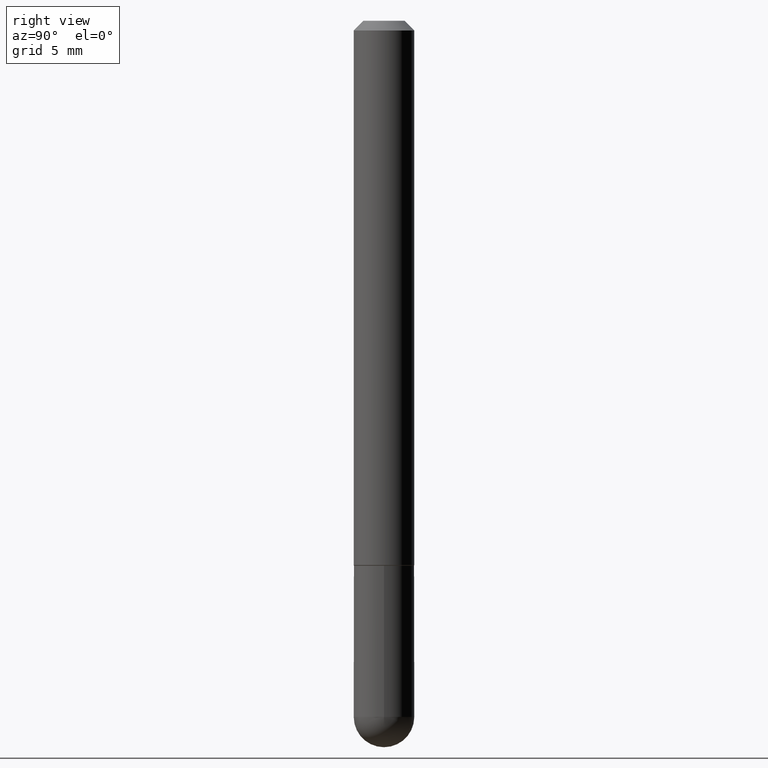
[diagram: clean part render]
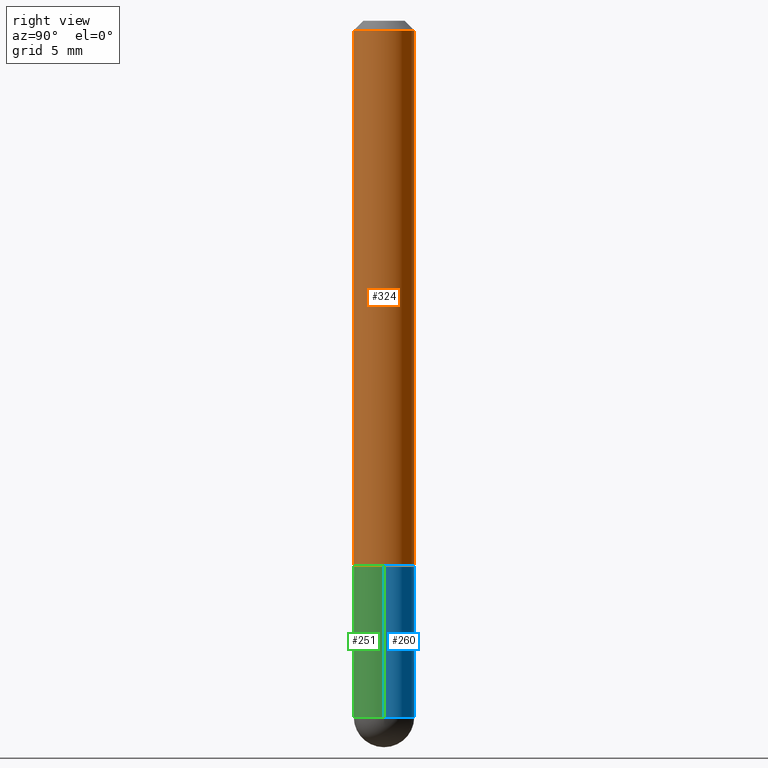
[diagram: same view with three faces highlighted in distinct colors, each labeled with its STEP entity id]
A machine part, right view with three faces highlighted in distinct colors.
Their STEP definitions:

[orange] entity #324 — the highlighted cylindrical surface (edge-blend (fillet) strip) has radius 1.5875 mm, axis along (-0, 0, 1).
#22 = CARTESIAN_POINT ( 'NONE',  ( 0.000000000000000000, 0.000000000000000000, 0.000000000000000000 ) ) ;
#33 = CARTESIAN_POINT ( 'NONE',  ( 4.440892098500628134E-16, 0.06250000000000002776, -2.199981325474416425E-16 ) ) ;
#44 = VECTOR ( 'NONE', #314, 39.37007874015748143 ) ;
#48 = EDGE_LOOP ( 'NONE', ( #109, #303, #209, #399 ) ) ;
#62 = AXIS2_PLACEMENT_3D ( 'NONE', #63, #372, #129 ) ;
#63 = CARTESIAN_POINT ( 'NONE',  ( 4.851150392199968571E-31, -7.039940241518151938E-17, -0.02000000000000006981 ) ) ;
#76 = AXIS2_PLACEMENT_3D ( 'NONE', #395, #145, #147 ) ;
#90 = EDGE_CURVE ( 'NONE', #244, #173, #121, .T. ) ;
#109 = ORIENTED_EDGE ( 'NONE', *, *, #336, .T. ) ;
#121 = LINE ( 'NONE', #33, #44 ) ;
#129 = DIRECTION ( 'NONE',  ( -6.982962677686265922E-15, -1.000000000000000000, 3.551402391763545142E-15 ) ) ;
#140 = CARTESIAN_POINT ( 'NONE',  ( -4.287811248607198352E-16, -0.06250000000000001388, -0.01999999999999984776 ) ) ;
#145 = DIRECTION ( 'NONE',  ( -2.425575196099976193E-29, 3.519970120759064308E-15, 1.000000000000000000 ) ) ;
#147 = DIRECTION ( 'NONE',  ( -6.982962677686265133E-15, -1.000000000000000000, 4.370956789862812472E-15 ) ) ;
#150 = VECTOR ( 'NONE', #169, 39.37007874015748143 ) ;
#151 = EDGE_CURVE ( 'NONE', #338, #173, #172, .T. ) ;
#169 = DIRECTION ( 'NONE',  ( -2.425575196099975913E-29, 3.519970120759064703E-15, 1.000000000000000000 ) ) ;
#171 = FACE_OUTER_BOUND ( 'NONE', #48, .T. ) ;
#172 = CIRCLE ( 'NONE', #62, 0.06249999999999995143 ) ;
#173 = VERTEX_POINT ( 'NONE', #194 ) ;
#174 = CIRCLE ( 'NONE', #76, 0.06250000000000012490 ) ;
#194 = CARTESIAN_POINT ( 'NONE',  ( 4.364351673553917187E-16, 0.06249999999999988204, -0.02000000000000029185 ) ) ;
#197 = CARTESIAN_POINT ( 'NONE',  ( 4.440892098500770129E-16, 0.06249999999999616279, -1.124000000000000332 ) ) ;
#209 = ORIENTED_EDGE ( 'NONE', *, *, #151, .F. ) ;
#227 = CARTESIAN_POINT ( 'NONE',  ( -4.364351673553652426E-16, -0.06250000000000406619, -1.123999999999999888 ) ) ;
#239 = LINE ( 'NONE', #337, #150 ) ;
#240 = VERTEX_POINT ( 'NONE', #227 ) ;
#244 = VERTEX_POINT ( 'NONE', #197 ) ;
#258 = AXIS2_PLACEMENT_3D ( 'NONE', #22, #363, #367 ) ;
#270 = CYLINDRICAL_SURFACE ( 'NONE', #258, 0.06250000000000002776 ) ;
#303 = ORIENTED_EDGE ( 'NONE', *, *, #90, .T. ) ;
#314 = DIRECTION ( 'NONE',  ( -2.425575196099975913E-29, 3.519970120759064703E-15, 1.000000000000000000 ) ) ;
#324 = ADVANCED_FACE ( 'NONE', ( #171 ), #270, .T. ) ;
#336 = EDGE_CURVE ( 'NONE', #240, #244, #174, .T. ) ;
#337 = CARTESIAN_POINT ( 'NONE',  ( -4.364351673553918666E-16, -0.06250000000000002776, 2.199981325474416425E-16 ) ) ;
#338 = VERTEX_POINT ( 'NONE', #140 ) ;
#363 = DIRECTION ( 'NONE',  ( -2.425575196099976193E-29, 3.519970120759064308E-15, 1.000000000000000000 ) ) ;
#367 = DIRECTION ( 'NONE',  ( -6.982962677686266711E-15, -1.000000000000000000, 3.519970120759064703E-15 ) ) ;
#372 = DIRECTION ( 'NONE',  ( -2.425575196099976193E-29, 3.519970120759064308E-15, 1.000000000000000000 ) ) ;
#395 = CARTESIAN_POINT ( 'NONE',  ( 2.726346520416373484E-29, -3.956446415733188311E-15, -1.124000000000000110 ) ) ;
#399 = ORIENTED_EDGE ( 'NONE', *, *, #412, .F. ) ;
#412 = EDGE_CURVE ( 'NONE', #240, #338, #239, .T. ) ;

[blue] entity #260 — the highlighted cylindrical surface (edge-blend (fillet) strip) has radius 1.5875 mm, axis along (-0, 0, 1).
#5 = DIRECTION ( 'NONE',  ( 1.000000000000000000, -6.982962677686267499E-15, 4.876176775795936353E-29 ) ) ;
#12 = FACE_OUTER_BOUND ( 'NONE', #335, .T. ) ;
#20 = ORIENTED_EDGE ( 'NONE', *, *, #406, .T. ) ;
#28 = ORIENTED_EDGE ( 'NONE', *, *, #65, .F. ) ;
#31 = AXIS2_PLACEMENT_3D ( 'NONE', #47, #328, #49 ) ;
#34 = CARTESIAN_POINT ( 'NONE',  ( 0.000000000000000000, 0.000000000000000000, 0.000000000000000000 ) ) ;
#37 = CARTESIAN_POINT ( 'NONE',  ( 4.364351673554256397E-16, 0.06249999999999480971, -1.437500000000000444 ) ) ;
#41 = EDGE_CURVE ( 'NONE', #215, #213, #54, .T. ) ;
#47 = CARTESIAN_POINT ( 'NONE',  ( 3.515361408891134418E-29, -5.019004424587023131E-15, -1.437500000000000222 ) ) ;
#49 = DIRECTION ( 'NONE',  ( 1.000000000000000000, -6.982962677686268288E-15, 0.000000000000000000 ) ) ;
#54 = CIRCLE ( 'NONE', #250, 0.06249999999999995143 ) ;
#65 = EDGE_CURVE ( 'NONE', #313, #170, #142, .T. ) ;
#69 = VECTOR ( 'NONE', #162, 39.37007874015748143 ) ;
#99 = CYLINDRICAL_SURFACE ( 'NONE', #208, 0.06249999999999997918 ) ;
#119 = VERTEX_POINT ( 'NONE', #374 ) ;
#138 = DIRECTION ( 'NONE',  ( -2.445468806185136597E-29, 3.491481338843145583E-15, 1.000000000000000000 ) ) ;
#142 = CIRCLE ( 'NONE', #400, 0.06250000000000001388 ) ;
#154 = CARTESIAN_POINT ( 'NONE',  ( 2.751152406958278111E-29, -3.927916506198538435E-15, -1.124999999999999778 ) ) ;
#161 = VECTOR ( 'NONE', #232, 39.37007874015748143 ) ;
#162 = DIRECTION ( 'NONE',  ( -2.445468806185136877E-29, 3.491481338843145188E-15, 1.000000000000000000 ) ) ;
#170 = VERTEX_POINT ( 'NONE', #231 ) ;
#183 = DIRECTION ( 'NONE',  ( -2.445468806185136597E-29, 3.491481338843145583E-15, 1.000000000000000000 ) ) ;
#198 = CARTESIAN_POINT ( 'NONE',  ( 0.06250000000000001388, -4.364351673553930105E-15, -1.124999999999999778 ) ) ;
#208 = AXIS2_PLACEMENT_3D ( 'NONE', #34, #138, #5 ) ;
#213 = VERTEX_POINT ( 'NONE', #37 ) ;
#215 = VERTEX_POINT ( 'NONE', #292 ) ;
#219 = DIRECTION ( 'NONE',  ( 1.000000000000000000, -6.982962677686268288E-15, 0.000000000000000000 ) ) ;
#231 = CARTESIAN_POINT ( 'NONE',  ( -0.06250000000000001388, -4.029371255542718167E-15, -1.124999999999999778 ) ) ;
#232 = DIRECTION ( 'NONE',  ( -2.445468806185136877E-29, 3.491481338843145188E-15, 1.000000000000000000 ) ) ;
#236 = EDGE_CURVE ( 'NONE', #215, #313, #325, .T. ) ;
#245 = EDGE_CURVE ( 'NONE', #119, #170, #357, .T. ) ;
#250 = AXIS2_PLACEMENT_3D ( 'NONE', #315, #183, #219 ) ;
#260 = ADVANCED_FACE ( 'NONE', ( #12 ), #99, .T. ) ;
#271 = ORIENTED_EDGE ( 'NONE', *, *, #245, .T. ) ;
#280 = DIRECTION ( 'NONE',  ( 1.000000000000000000, -6.982962677686269077E-15, 0.000000000000000000 ) ) ;
#282 = DIRECTION ( 'NONE',  ( -2.445468806185136597E-29, 3.491481338843145583E-15, 1.000000000000000000 ) ) ;
#292 = CARTESIAN_POINT ( 'NONE',  ( 0.06249999999999995143, -4.909895632748172453E-15, -1.437500000000000222 ) ) ;
#313 = VERTEX_POINT ( 'NONE', #198 ) ;
#315 = CARTESIAN_POINT ( 'NONE',  ( 3.515361408891134418E-29, -5.019004424587023131E-15, -1.437500000000000222 ) ) ;
#321 = CARTESIAN_POINT ( 'NONE',  ( 0.06249999999999997918, -4.364351673553915708E-16, 3.047610484872459170E-30 ) ) ;
#325 = LINE ( 'NONE', #321, #161 ) ;
#328 = DIRECTION ( 'NONE',  ( -2.445468806185136597E-29, 3.491481338843145583E-15, 1.000000000000000000 ) ) ;
#333 = CIRCLE ( 'NONE', #31, 0.06249999999999995143 ) ;
#335 = EDGE_LOOP ( 'NONE', ( #20, #271, #28, #390, #370 ) ) ;
#356 = CARTESIAN_POINT ( 'NONE',  ( -0.06249999999999997918, 4.440892098500624683E-16, -3.074334431409315413E-30 ) ) ;
#357 = LINE ( 'NONE', #356, #69 ) ;
#370 = ORIENTED_EDGE ( 'NONE', *, *, #41, .T. ) ;
#374 = CARTESIAN_POINT ( 'NONE',  ( -0.06249999999999995143, -4.029371255542718167E-15, -1.437500000000000222 ) ) ;
#390 = ORIENTED_EDGE ( 'NONE', *, *, #236, .F. ) ;
#400 = AXIS2_PLACEMENT_3D ( 'NONE', #154, #282, #280 ) ;
#406 = EDGE_CURVE ( 'NONE', #213, #119, #333, .T. ) ;

[green] entity #251 — the highlighted cylindrical surface (edge-blend (fillet) strip) has radius 1.5875 mm, axis along (-0, 0, 1).
#39 = FACE_OUTER_BOUND ( 'NONE', #403, .T. ) ;
#66 = CARTESIAN_POINT ( 'NONE',  ( 0.000000000000000000, 0.000000000000000000, 0.000000000000000000 ) ) ;
#69 = VECTOR ( 'NONE', #162, 39.37007874015748143 ) ;
#102 = EDGE_CURVE ( 'NONE', #139, #215, #135, .T. ) ;
#119 = VERTEX_POINT ( 'NONE', #374 ) ;
#134 = DIRECTION ( 'NONE',  ( -2.445468806185136597E-29, 3.491481338843145583E-15, 1.000000000000000000 ) ) ;
#135 = CIRCLE ( 'NONE', #188, 0.06249999999999995143 ) ;
#139 = VERTEX_POINT ( 'NONE', #345 ) ;
#155 = DIRECTION ( 'NONE',  ( -2.445468806185136597E-29, 3.491481338843145583E-15, 1.000000000000000000 ) ) ;
#161 = VECTOR ( 'NONE', #232, 39.37007874015748143 ) ;
#162 = DIRECTION ( 'NONE',  ( -2.445468806185136877E-29, 3.491481338843145188E-15, 1.000000000000000000 ) ) ;
#166 = DIRECTION ( 'NONE',  ( -2.445468806185136597E-29, 3.491481338843145583E-15, 1.000000000000000000 ) ) ;
#170 = VERTEX_POINT ( 'NONE', #231 ) ;
#188 = AXIS2_PLACEMENT_3D ( 'NONE', #380, #155, #285 ) ;
#198 = CARTESIAN_POINT ( 'NONE',  ( 0.06250000000000001388, -4.364351673553930105E-15, -1.124999999999999778 ) ) ;
#200 = CIRCLE ( 'NONE', #309, 0.06249999999999995143 ) ;
#206 = ORIENTED_EDGE ( 'NONE', *, *, #245, .F. ) ;
#215 = VERTEX_POINT ( 'NONE', #292 ) ;
#226 = DIRECTION ( 'NONE',  ( 1.000000000000000000, -6.982962677686268288E-15, 0.000000000000000000 ) ) ;
#231 = CARTESIAN_POINT ( 'NONE',  ( -0.06250000000000001388, -4.029371255542718167E-15, -1.124999999999999778 ) ) ;
#232 = DIRECTION ( 'NONE',  ( -2.445468806185136877E-29, 3.491481338843145188E-15, 1.000000000000000000 ) ) ;
#235 = ORIENTED_EDGE ( 'NONE', *, *, #102, .T. ) ;
#236 = EDGE_CURVE ( 'NONE', #215, #313, #325, .T. ) ;
#245 = EDGE_CURVE ( 'NONE', #119, #170, #357, .T. ) ;
#251 = ADVANCED_FACE ( 'NONE', ( #39 ), #320, .T. ) ;
#253 = ORIENTED_EDGE ( 'NONE', *, *, #268, .F. ) ;
#259 = CARTESIAN_POINT ( 'NONE',  ( 3.515361408891134418E-29, -5.019004424587023131E-15, -1.437500000000000222 ) ) ;
#261 = DIRECTION ( 'NONE',  ( 1.000000000000000000, -6.982962677686267499E-15, 4.876176775795936353E-29 ) ) ;
#263 = AXIS2_PLACEMENT_3D ( 'NONE', #66, #166, #261 ) ;
#266 = DIRECTION ( 'NONE',  ( -2.445468806185136597E-29, 3.491481338843145583E-15, 1.000000000000000000 ) ) ;
#268 = EDGE_CURVE ( 'NONE', #170, #313, #300, .T. ) ;
#274 = ORIENTED_EDGE ( 'NONE', *, *, #236, .T. ) ;
#285 = DIRECTION ( 'NONE',  ( 1.000000000000000000, -6.982962677686268288E-15, 0.000000000000000000 ) ) ;
#291 = EDGE_CURVE ( 'NONE', #119, #139, #200, .T. ) ;
#292 = CARTESIAN_POINT ( 'NONE',  ( 0.06249999999999995143, -4.909895632748172453E-15, -1.437500000000000222 ) ) ;
#296 = CARTESIAN_POINT ( 'NONE',  ( 2.751152406958278111E-29, -3.927916506198538435E-15, -1.124999999999999778 ) ) ;
#300 = CIRCLE ( 'NONE', #391, 0.06250000000000001388 ) ;
#309 = AXIS2_PLACEMENT_3D ( 'NONE', #259, #134, #226 ) ;
#313 = VERTEX_POINT ( 'NONE', #198 ) ;
#320 = CYLINDRICAL_SURFACE ( 'NONE', #263, 0.06249999999999997918 ) ;
#321 = CARTESIAN_POINT ( 'NONE',  ( 0.06249999999999997918, -4.364351673553915708E-16, 3.047610484872459170E-30 ) ) ;
#325 = LINE ( 'NONE', #321, #161 ) ;
#345 = CARTESIAN_POINT ( 'NONE',  ( -4.440892098500294840E-16, -0.06250000000000532907, -1.437500000000000000 ) ) ;
#356 = CARTESIAN_POINT ( 'NONE',  ( -0.06249999999999997918, 4.440892098500624683E-16, -3.074334431409315413E-30 ) ) ;
#357 = LINE ( 'NONE', #356, #69 ) ;
#368 = ORIENTED_EDGE ( 'NONE', *, *, #291, .T. ) ;
#374 = CARTESIAN_POINT ( 'NONE',  ( -0.06249999999999995143, -4.029371255542718167E-15, -1.437500000000000222 ) ) ;
#380 = CARTESIAN_POINT ( 'NONE',  ( 3.515361408891134418E-29, -5.019004424587023131E-15, -1.437500000000000222 ) ) ;
#388 = DIRECTION ( 'NONE',  ( 1.000000000000000000, -6.982962677686269077E-15, 0.000000000000000000 ) ) ;
#391 = AXIS2_PLACEMENT_3D ( 'NONE', #296, #266, #388 ) ;
#403 = EDGE_LOOP ( 'NONE', ( #206, #368, #235, #274, #253 ) ) ;